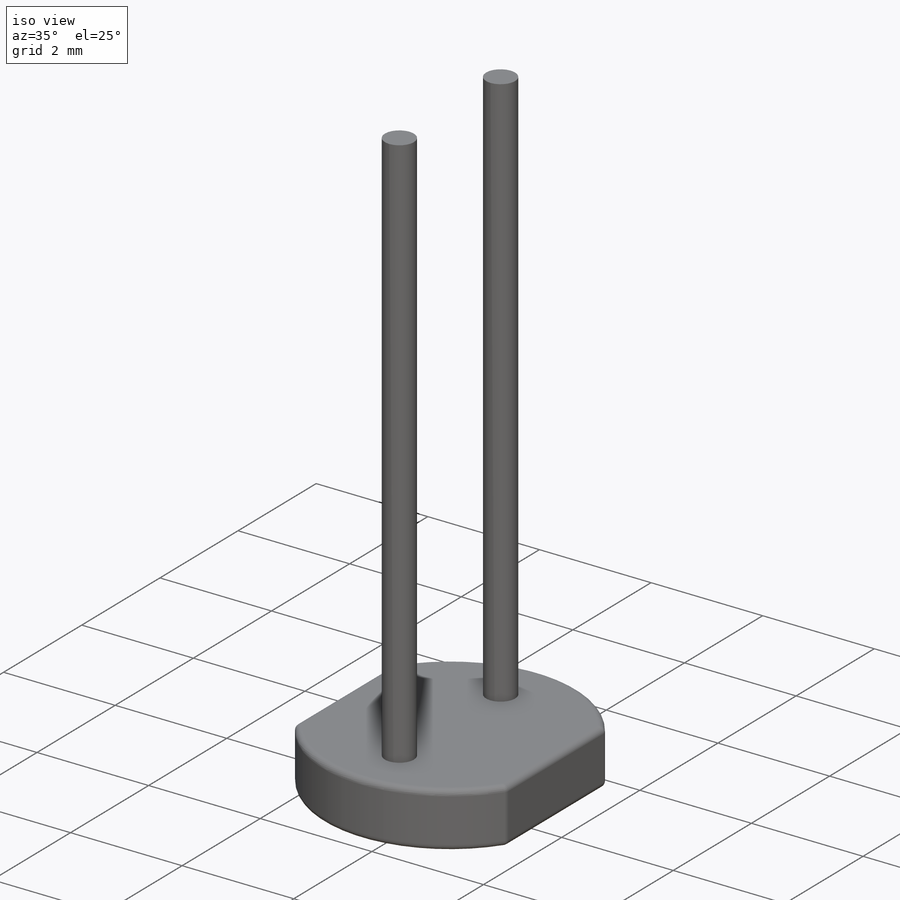
[diagram: iso view]
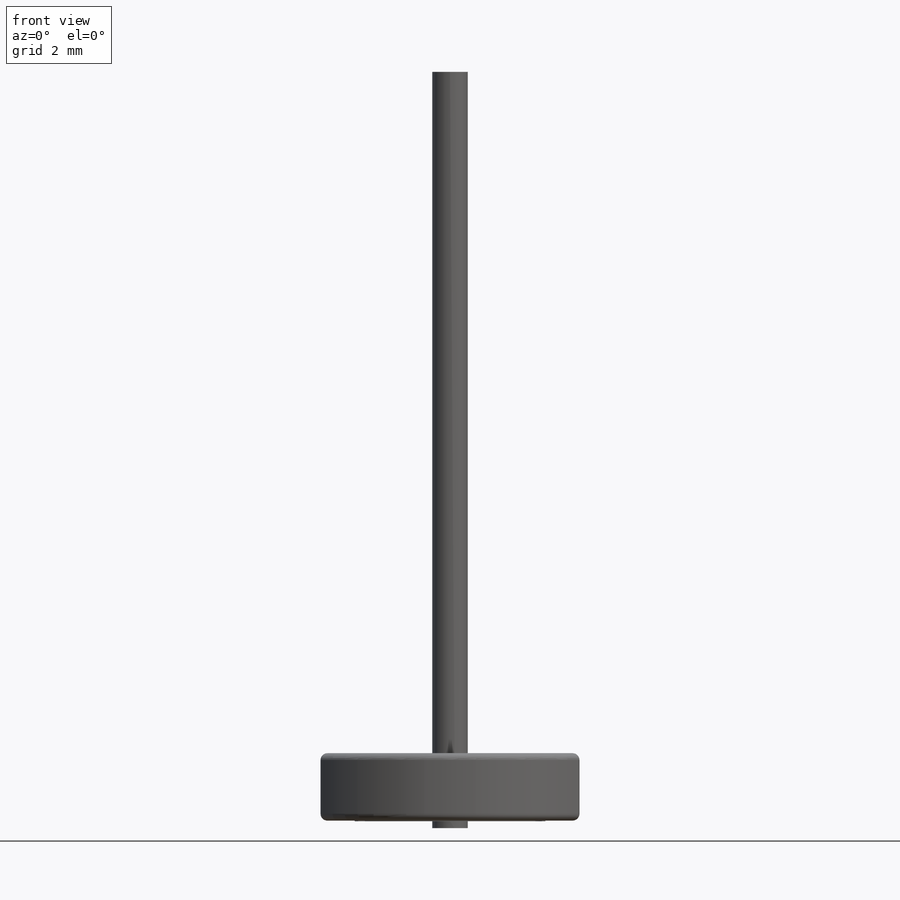
[diagram: front view]
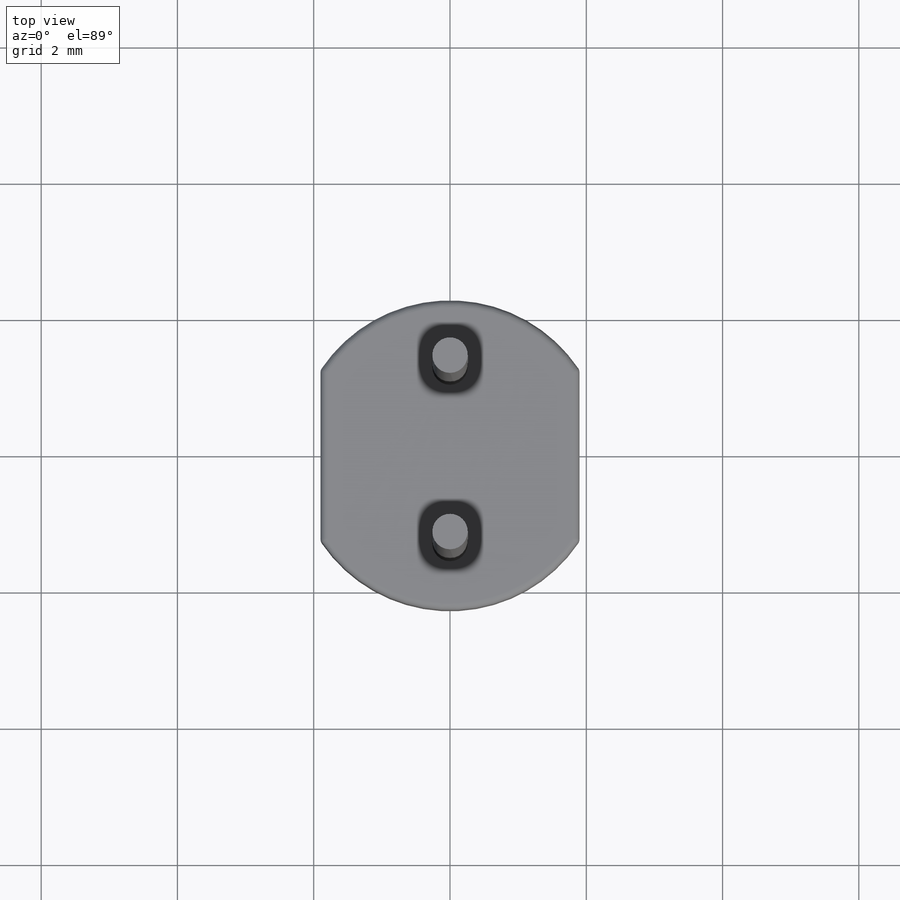
[diagram: top view]
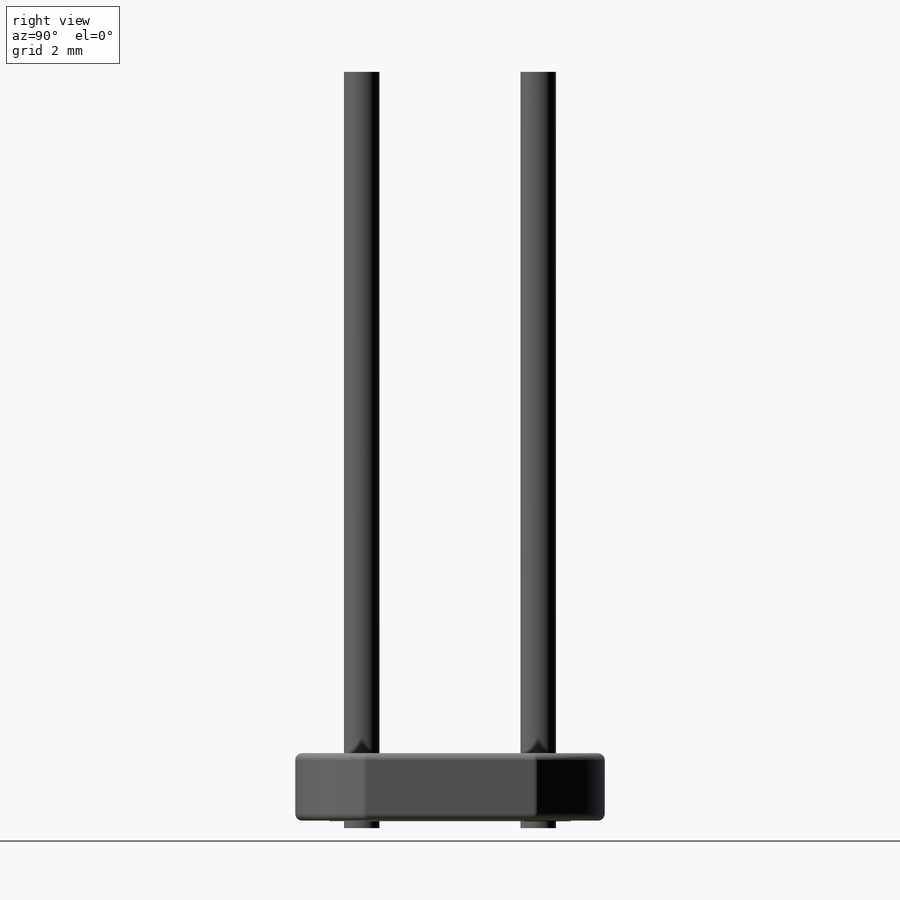
[diagram: right view]
SOLIDWORKS PART (.sldprt)
format: sldprt  version: not decoded by parser v0  size: 326,144 bytes
history: native  units: mm
features: sketch x4, extrude x2, material x1, cut_extrude x1, fillet x1, plane x1 (+11 scaffold rows collapsed)
feature tree (21):
  scaffold x11  (default folders/planes/origin — collapsed)
  material  "1060 Alloy"
  sketch  "Sketch1"  dims[D1=4.55mm D2=3.8mm]
  extrude  "Boss-Extrude1"  Depth=1mm
  sketch  "Sketch2"  dims[D1=0.52mm D2=2.59mm]
  extrude  "Boss-Extrude2"  Depth=10mm
  sketch  "Sketch4"  dims[c1.D2=0.3mm c1.D4=0.15mm c1.D5=0.3mm c2.D4=0.1mm c2.D5=0.8mm c2.D6=1.45mm c2.D7=1.6mm c2.D8=1.8mm c2.D9=1.9mm c2.D10=1.8mm c2.D1=0.5mm c2.D3=0.1mm]
  cut_extrude  "Cut-Extrude1"  Depth=0.01mm
  fillet  "Fillet1"  Radius=0.1mm
  sketch  "Sketch5"
  plane  "Plane1"
decode coverage: 7 of 8 modeling features carry decoded parameters
note: suppression state not decoded; provenance and decode notes live in map.json
